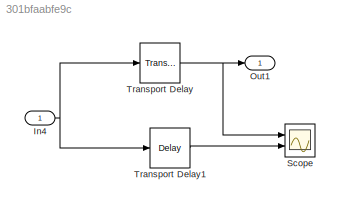
MODEL slx_301bfaabfe9c
KIND model
CONFIG AbsTol = auto
CONFIG EnableMultiTasking = on
CONFIG FixedStep = 0.200000
CONFIG MaxStep = auto
CONFIG MinStep = auto
CONFIG RelTol = 1e-3
CONFIG SampleTimeConstraint = Unconstrained
CONFIG Solver = FixedStepDiscrete
CONFIG SolverName = FixedStepDiscrete
CONFIG StartTime = 0.0
CONFIG StopTime = 10.0
WORKSPACE source: MAT-file member
WORKSPACE input_struct: struct (value not decoded)
BLOCK [Inport] In4
  IconDisplay = Port number
  OutDataTypeStr = double
BLOCK [Outport] Out1
  IconDisplay = Port number
BLOCK [Scope] Scope
  NumInputPorts = 2
  Ports = [2]
  ScopeSpecificationString = C++SS(StrPVP('Open','on'),StrPVP('TimeRange','auto'),StrPVP('TickLabels','OneTimeTick'),StrPVP('ShowLegends','off'),StrPVP('LimitDataPoints','off'),StrPVP('MaxDataPoints','5000'),StrPVP('SaveToWorkspace','off'),StrPVP('SaveName','ScopeData'),StrPVP('YMin','-10~-10'),StrPVP('YMax','10~10'),StrPVP('BlockParamSampleInput','off'),StrPVP('BlockParamSampleTime','-1'),StrPVP('ZoomMode','on'),StrPVP('Grid...<+605ch>
BLOCK [TransportDelay] Transport Delay
  Ports = [1, 1]
BLOCK [Delay] Transport Delay1
  DelayLength = 5
  InitialCondition = 0
  InputPortMap = u0
  Ports = [1, 1]
NET In4:1 -> Transport Delay1:1, Transport Delay:1
LINE Transport Delay1:1 -> Scope:2
NET Transport Delay:1 -> Out1:1, Scope:1
note: NET lines group one-source signal fan-out (src -> all destinations, sorted); 1:1 wires keep LINE
